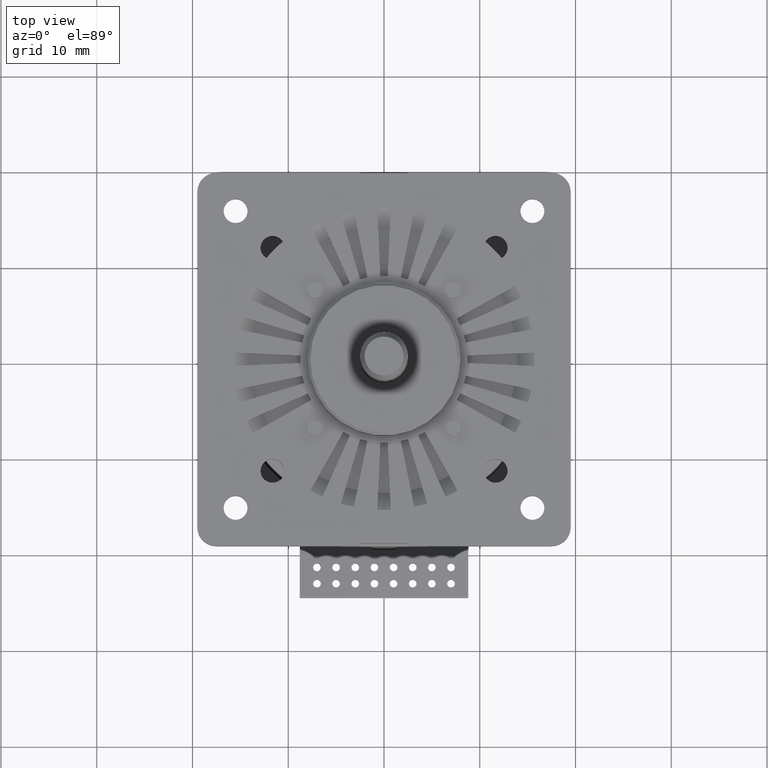
[diagram: clean part render]
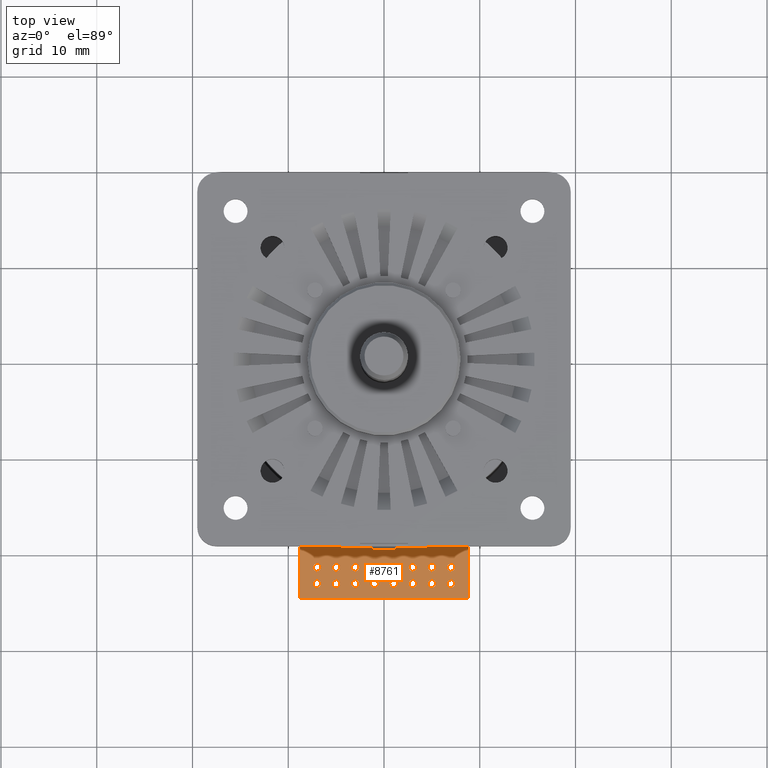
[diagram: same view with one face highlighted and labeled with its STEP entity id]
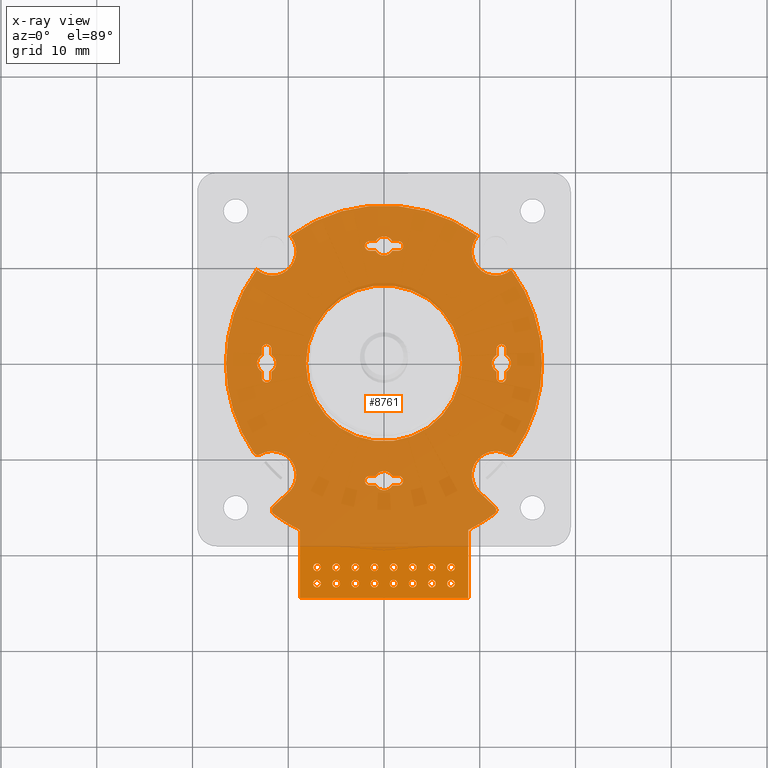
[diagram: x-ray of the same camera — body ghosted, the highlighted face saturated]
A machine part, top view. The second image highlights one B-rep face of the part: STEP entity #8761.
The next image is the same camera in x-ray: the body ghosted, the highlighted face saturated — about 89% of this face is hidden behind the body in this view.
In plain terms, the highlighted planar face has unit normal (0, 0, 1).
Its self-contained STEP definition (entity closure, byte-faithful):
#6999=CARTESIAN_POINT('',(0.E0,0.E0,0.E0));
#7000=DIRECTION('',(0.E0,0.E0,1.E0));
#7001=DIRECTION('',(-8.058198188562E-1,5.921608054732E-1,0.E0));
#7002=AXIS2_PLACEMENT_3D('',#6999,#7000,#7001);
#7004=CARTESIAN_POINT('',(-1.166726188958E1,1.166726188958E1,0.E0));
#7005=DIRECTION('',(0.E0,0.E0,-1.E0));
#7006=DIRECTION('',(1.E0,0.E0,0.E0));
#7007=AXIS2_PLACEMENT_3D('',#7004,#7005,#7006);
#7009=CARTESIAN_POINT('',(-1.166726188958E1,1.166726188958E1,0.E0));
#7010=DIRECTION('',(0.E0,0.E0,-1.E0));
#7011=DIRECTION('',(7.586434397082E-1,6.515060486194E-1,0.E0));
#7012=AXIS2_PLACEMENT_3D('',#7009,#7010,#7011);
#7014=CARTESIAN_POINT('',(0.E0,0.E0,0.E0));
#7015=DIRECTION('',(0.E0,0.E0,1.E0));
#7016=DIRECTION('',(5.921608054732E-1,8.058198188562E-1,0.E0));
#7017=AXIS2_PLACEMENT_3D('',#7014,#7015,#7016);
#7019=CARTESIAN_POINT('',(1.166726188958E1,1.166726188958E1,0.E0));
#7020=DIRECTION('',(0.E0,0.E0,-1.E0));
#7021=DIRECTION('',(-1.E0,0.E0,0.E0));
#7022=AXIS2_PLACEMENT_3D('',#7019,#7020,#7021);
#7024=CARTESIAN_POINT('',(1.166726188958E1,1.166726188958E1,0.E0));
#7025=DIRECTION('',(0.E0,0.E0,-1.E0));
#7026=DIRECTION('',(6.515060486194E-1,-7.586434397082E-1,0.E0));
#7027=AXIS2_PLACEMENT_3D('',#7024,#7025,#7026);
#7029=CARTESIAN_POINT('',(0.E0,0.E0,0.E0));
#7030=DIRECTION('',(0.E0,0.E0,1.E0));
#7031=DIRECTION('',(1.E0,0.E0,0.E0));
#7032=AXIS2_PLACEMENT_3D('',#7029,#7030,#7031);
#7034=CARTESIAN_POINT('',(0.E0,0.E0,0.E0));
#7035=DIRECTION('',(0.E0,0.E0,1.E0));
#7036=DIRECTION('',(8.235863458924E-1,-5.671909121800E-1,0.E0));
#7037=AXIS2_PLACEMENT_3D('',#7034,#7035,#7036);
#7039=CARTESIAN_POINT('',(1.317738153428E1,-9.075054594879E0,0.E0));
#7040=DIRECTION('',(0.E0,0.E0,1.E0));
#7041=DIRECTION('',(-5.033732149003E-1,-8.640690982328E-1,0.E0));
#7042=AXIS2_PLACEMENT_3D('',#7039,#7040,#7041);
#7044=CARTESIAN_POINT('',(1.166726188958E1,-1.166726188958E1,0.E0));
#7045=DIRECTION('',(0.E0,0.E0,-1.E0));
#7046=DIRECTION('',(-7.586434397082E-1,-6.515060486194E-1,0.E0));
#7047=AXIS2_PLACEMENT_3D('',#7044,#7045,#7046);
#7049=DIRECTION('',(-7.320903966057E-1,6.812074949659E-1,0.E0));
#7050=VECTOR('',#7049,2.449697499427E0);
#7051=CARTESIAN_POINT('',(1.156405330423E1,-1.496477930814E1,0.E0));
#7052=LINE('',#7051,#7050);
#7053=CARTESIAN_POINT('',(1.122344955674E1,-1.533082450644E1,0.E0));
#7054=DIRECTION('',(0.E0,0.E0,1.E0));
#7055=DIRECTION('',(1.E0,0.E0,0.E0));
#7056=AXIS2_PLACEMENT_3D('',#7053,#7054,#7055);
#7058=CARTESIAN_POINT('',(1.122344955674E1,-1.533082450644E1,0.E0));
#7059=DIRECTION('',(0.E0,0.E0,1.E0));
#7060=DIRECTION('',(5.907078714076E-1,-8.068855003389E-1,0.E0));
#7061=AXIS2_PLACEMENT_3D('',#7058,#7059,#7060);
#7063=CARTESIAN_POINT('',(0.E0,0.E0,0.E0));
#7064=DIRECTION('',(0.E0,0.E0,1.E0));
#7065=DIRECTION('',(4.512820512821E-1,-8.923813703740E-1,0.E0));
#7066=AXIS2_PLACEMENT_3D('',#7063,#7064,#7065);
#7068=DIRECTION('',(0.E0,-1.E0,0.E0));
#7069=VECTOR('',#7068,7.098563277706E0);
#7070=CARTESIAN_POINT('',(-8.8E0,-1.740143672229E1,0.E0));
#7071=LINE('',#7070,#7069);
#7072=CARTESIAN_POINT('',(0.E0,0.E0,0.E0));
#7073=DIRECTION('',(0.E0,0.E0,1.E0));
#7074=DIRECTION('',(-5.907078714076E-1,-8.068855003389E-1,0.E0));
#7075=AXIS2_PLACEMENT_3D('',#7072,#7073,#7074);
#7077=CARTESIAN_POINT('',(-1.122344955674E1,-1.533082450644E1,0.E0));
#7078=DIRECTION('',(0.E0,0.E0,1.E0));
#7079=DIRECTION('',(-1.E0,0.E0,0.E0));
#7080=AXIS2_PLACEMENT_3D('',#7077,#7078,#7079);
#7082=CARTESIAN_POINT('',(-1.122344955674E1,-1.533082450644E1,0.E0));
#7083=DIRECTION('',(0.E0,0.E0,1.E0));
#7084=DIRECTION('',(-6.812074949658E-1,7.320903966058E-1,0.E0));
#7085=AXIS2_PLACEMENT_3D('',#7082,#7083,#7084);
#7087=DIRECTION('',(-7.320903966057E-1,-6.812074949659E-1,0.E0));
#7088=VECTOR('',#7087,2.449697499427E0);
#7089=CARTESIAN_POINT('',(-9.770653290307E0,-1.329602701113E1,0.E0));
#7090=LINE('',#7089,#7088);
#7091=CARTESIAN_POINT('',(-1.166726188958E1,-1.166726188958E1,0.E0));
#7092=DIRECTION('',(0.E0,0.E0,-1.E0));
#7093=DIRECTION('',(1.E0,0.E0,0.E0));
#7094=AXIS2_PLACEMENT_3D('',#7091,#7092,#7093);
#7096=CARTESIAN_POINT('',(-1.166726188958E1,-1.166726188958E1,0.E0));
#7097=DIRECTION('',(0.E0,0.E0,-1.E0));
#7098=DIRECTION('',(-5.033732149003E-1,8.640690982329E-1,0.E0));
#7099=AXIS2_PLACEMENT_3D('',#7096,#7097,#7098);
#7101=CARTESIAN_POINT('',(-1.317738153428E1,-9.075054594879E0,0.E0));
#7102=DIRECTION('',(0.E0,0.E0,1.E0));
#7103=DIRECTION('',(-8.235863458924E-1,-5.671909121800E-1,0.E0));
#7104=AXIS2_PLACEMENT_3D('',#7101,#7102,#7103);
#7106=CARTESIAN_POINT('',(0.E0,0.E0,0.E0));
#7107=DIRECTION('',(0.E0,0.E0,1.E0));
#7108=DIRECTION('',(-1.E0,0.E0,0.E0));
#7109=AXIS2_PLACEMENT_3D('',#7106,#7107,#7108);
#7111=CARTESIAN_POINT('',(7.E0,-2.13E1,0.E0));
#7112=DIRECTION('',(0.E0,0.E0,-1.E0));
#7113=DIRECTION('',(-1.E0,0.E0,0.E0));
#7114=AXIS2_PLACEMENT_3D('',#7111,#7112,#7113);
#7116=CARTESIAN_POINT('',(7.E0,-2.13E1,0.E0));
#7117=DIRECTION('',(0.E0,0.E0,-1.E0));
#7118=DIRECTION('',(1.E0,0.E0,0.E0));
#7119=AXIS2_PLACEMENT_3D('',#7116,#7117,#7118);
#7121=CARTESIAN_POINT('',(5.E0,-2.13E1,0.E0));
#7122=DIRECTION('',(0.E0,0.E0,-1.E0));
#7123=DIRECTION('',(-1.E0,0.E0,0.E0));
#7124=AXIS2_PLACEMENT_3D('',#7121,#7122,#7123);
#7126=CARTESIAN_POINT('',(5.E0,-2.13E1,0.E0));
#7127=DIRECTION('',(0.E0,0.E0,-1.E0));
#7128=DIRECTION('',(1.E0,0.E0,0.E0));
#7129=AXIS2_PLACEMENT_3D('',#7126,#7127,#7128);
#7131=CARTESIAN_POINT('',(3.E0,-2.13E1,0.E0));
#7132=DIRECTION('',(0.E0,0.E0,-1.E0));
#7133=DIRECTION('',(-1.E0,0.E0,0.E0));
#7134=AXIS2_PLACEMENT_3D('',#7131,#7132,#7133);
#7136=CARTESIAN_POINT('',(3.E0,-2.13E1,0.E0));
#7137=DIRECTION('',(0.E0,0.E0,-1.E0));
#7138=DIRECTION('',(1.E0,0.E0,0.E0));
#7139=AXIS2_PLACEMENT_3D('',#7136,#7137,#7138);
#7141=CARTESIAN_POINT('',(-7.E0,-2.13E1,0.E0));
#7142=DIRECTION('',(0.E0,0.E0,-1.E0));
#7143=DIRECTION('',(-1.E0,0.E0,0.E0));
#7144=AXIS2_PLACEMENT_3D('',#7141,#7142,#7143);
#7146=CARTESIAN_POINT('',(-7.E0,-2.13E1,0.E0));
#7147=DIRECTION('',(0.E0,0.E0,-1.E0));
#7148=DIRECTION('',(1.E0,0.E0,0.E0));
#7149=AXIS2_PLACEMENT_3D('',#7146,#7147,#7148);
#7151=CARTESIAN_POINT('',(-5.E0,-2.13E1,0.E0));
#7152=DIRECTION('',(0.E0,0.E0,-1.E0));
#7153=DIRECTION('',(-1.E0,0.E0,0.E0));
#7154=AXIS2_PLACEMENT_3D('',#7151,#7152,#7153);
#7156=CARTESIAN_POINT('',(-5.E0,-2.13E1,0.E0));
#7157=DIRECTION('',(0.E0,0.E0,-1.E0));
#7158=DIRECTION('',(1.E0,0.E0,0.E0));
#7159=AXIS2_PLACEMENT_3D('',#7156,#7157,#7158);
#7161=CARTESIAN_POINT('',(-3.E0,-2.13E1,0.E0));
#7162=DIRECTION('',(0.E0,0.E0,-1.E0));
#7163=DIRECTION('',(-1.E0,0.E0,0.E0));
#7164=AXIS2_PLACEMENT_3D('',#7161,#7162,#7163);
#7166=CARTESIAN_POINT('',(-3.E0,-2.13E1,0.E0));
#7167=DIRECTION('',(0.E0,0.E0,-1.E0));
#7168=DIRECTION('',(1.E0,0.E0,0.E0));
#7169=AXIS2_PLACEMENT_3D('',#7166,#7167,#7168);
#7171=CARTESIAN_POINT('',(-1.E0,-2.13E1,0.E0));
#7172=DIRECTION('',(0.E0,0.E0,-1.E0));
#7173=DIRECTION('',(-1.E0,0.E0,0.E0));
#7174=AXIS2_PLACEMENT_3D('',#7171,#7172,#7173);
#7176=CARTESIAN_POINT('',(-1.E0,-2.13E1,0.E0));
#7177=DIRECTION('',(0.E0,0.E0,-1.E0));
#7178=DIRECTION('',(1.E0,0.E0,0.E0));
#7179=AXIS2_PLACEMENT_3D('',#7176,#7177,#7178);
#7181=CARTESIAN_POINT('',(1.E0,-2.13E1,0.E0));
#7182=DIRECTION('',(0.E0,0.E0,-1.E0));
#7183=DIRECTION('',(-1.E0,0.E0,0.E0));
#7184=AXIS2_PLACEMENT_3D('',#7181,#7182,#7183);
#7186=CARTESIAN_POINT('',(1.E0,-2.13E1,0.E0));
#7187=DIRECTION('',(0.E0,0.E0,-1.E0));
#7188=DIRECTION('',(1.E0,0.E0,0.E0));
#7189=AXIS2_PLACEMENT_3D('',#7186,#7187,#7188);
#7191=CARTESIAN_POINT('',(7.E0,-2.3E1,0.E0));
#7192=DIRECTION('',(0.E0,0.E0,-1.E0));
#7193=DIRECTION('',(-1.E0,0.E0,0.E0));
#7194=AXIS2_PLACEMENT_3D('',#7191,#7192,#7193);
#7196=CARTESIAN_POINT('',(7.E0,-2.3E1,0.E0));
#7197=DIRECTION('',(0.E0,0.E0,-1.E0));
#7198=DIRECTION('',(1.E0,0.E0,0.E0));
#7199=AXIS2_PLACEMENT_3D('',#7196,#7197,#7198);
#7201=CARTESIAN_POINT('',(5.E0,-2.3E1,0.E0));
#7202=DIRECTION('',(0.E0,0.E0,-1.E0));
#7203=DIRECTION('',(-1.E0,0.E0,0.E0));
#7204=AXIS2_PLACEMENT_3D('',#7201,#7202,#7203);
#7206=CARTESIAN_POINT('',(5.E0,-2.3E1,0.E0));
#7207=DIRECTION('',(0.E0,0.E0,-1.E0));
#7208=DIRECTION('',(1.E0,0.E0,0.E0));
#7209=AXIS2_PLACEMENT_3D('',#7206,#7207,#7208);
#7211=CARTESIAN_POINT('',(3.E0,-2.3E1,0.E0));
#7212=DIRECTION('',(0.E0,0.E0,-1.E0));
#7213=DIRECTION('',(-1.E0,0.E0,0.E0));
#7214=AXIS2_PLACEMENT_3D('',#7211,#7212,#7213);
#7216=CARTESIAN_POINT('',(3.E0,-2.3E1,0.E0));
#7217=DIRECTION('',(0.E0,0.E0,-1.E0));
#7218=DIRECTION('',(1.E0,0.E0,0.E0));
#7219=AXIS2_PLACEMENT_3D('',#7216,#7217,#7218);
#7221=CARTESIAN_POINT('',(-7.E0,-2.3E1,0.E0));
#7222=DIRECTION('',(0.E0,0.E0,-1.E0));
#7223=DIRECTION('',(-1.E0,0.E0,0.E0));
#7224=AXIS2_PLACEMENT_3D('',#7221,#7222,#7223);
#7226=CARTESIAN_POINT('',(-7.E0,-2.3E1,0.E0));
#7227=DIRECTION('',(0.E0,0.E0,-1.E0));
#7228=DIRECTION('',(1.E0,0.E0,0.E0));
#7229=AXIS2_PLACEMENT_3D('',#7226,#7227,#7228);
#7231=CARTESIAN_POINT('',(-5.E0,-2.3E1,0.E0));
#7232=DIRECTION('',(0.E0,0.E0,-1.E0));
#7233=DIRECTION('',(-1.E0,0.E0,0.E0));
#7234=AXIS2_PLACEMENT_3D('',#7231,#7232,#7233);
#7236=CARTESIAN_POINT('',(-5.E0,-2.3E1,0.E0));
#7237=DIRECTION('',(0.E0,0.E0,-1.E0));
#7238=DIRECTION('',(1.E0,0.E0,0.E0));
#7239=AXIS2_PLACEMENT_3D('',#7236,#7237,#7238);
#7241=CARTESIAN_POINT('',(-3.E0,-2.3E1,0.E0));
#7242=DIRECTION('',(0.E0,0.E0,-1.E0));
#7243=DIRECTION('',(-1.E0,0.E0,0.E0));
#7244=AXIS2_PLACEMENT_3D('',#7241,#7242,#7243);
#7246=CARTESIAN_POINT('',(-3.E0,-2.3E1,0.E0));
#7247=DIRECTION('',(0.E0,0.E0,-1.E0));
#7248=DIRECTION('',(1.E0,0.E0,0.E0));
#7249=AXIS2_PLACEMENT_3D('',#7246,#7247,#7248);
#7251=CARTESIAN_POINT('',(-1.E0,-2.3E1,0.E0));
#7252=DIRECTION('',(0.E0,0.E0,-1.E0));
#7253=DIRECTION('',(-1.E0,0.E0,0.E0));
#7254=AXIS2_PLACEMENT_3D('',#7251,#7252,#7253);
#7256=CARTESIAN_POINT('',(-1.E0,-2.3E1,0.E0));
#7257=DIRECTION('',(0.E0,0.E0,-1.E0));
#7258=DIRECTION('',(1.E0,0.E0,0.E0));
#7259=AXIS2_PLACEMENT_3D('',#7256,#7257,#7258);
#7261=CARTESIAN_POINT('',(1.E0,-2.3E1,0.E0));
#7262=DIRECTION('',(0.E0,0.E0,-1.E0));
#7263=DIRECTION('',(-1.E0,0.E0,0.E0));
#7264=AXIS2_PLACEMENT_3D('',#7261,#7262,#7263);
#7266=CARTESIAN_POINT('',(1.E0,-2.3E1,0.E0));
#7267=DIRECTION('',(0.E0,0.E0,-1.E0));
#7268=DIRECTION('',(1.E0,0.E0,0.E0));
#7269=AXIS2_PLACEMENT_3D('',#7266,#7267,#7268);
#7271=CARTESIAN_POINT('',(1.226E1,-1.5E0,0.E0));
#7272=DIRECTION('',(0.E0,0.E0,-1.E0));
#7273=DIRECTION('',(1.E0,2.220446049250E-14,0.E0));
#7274=AXIS2_PLACEMENT_3D('',#7271,#7272,#7273);
#7276=DIRECTION('',(0.E0,-1.E0,0.E0));
#7277=VECTOR('',#7276,6.339745962156E-1);
#7278=CARTESIAN_POINT('',(1.276E1,-8.660254037844E-1,0.E0));
#7279=LINE('',#7278,#7277);
#7280=CARTESIAN_POINT('',(1.226E1,0.E0,0.E0));
#7281=DIRECTION('',(0.E0,0.E0,-1.E0));
#7282=DIRECTION('',(1.E0,0.E0,0.E0));
#7283=AXIS2_PLACEMENT_3D('',#7280,#7281,#7282);
#7285=CARTESIAN_POINT('',(1.226E1,0.E0,0.E0));
#7286=DIRECTION('',(0.E0,0.E0,-1.E0));
#7287=DIRECTION('',(5.E-1,8.660254037844E-1,0.E0));
#7288=AXIS2_PLACEMENT_3D('',#7285,#7286,#7287);
#7290=CARTESIAN_POINT('',(1.226E1,1.5E0,0.E0));
#7291=DIRECTION('',(0.E0,0.E0,-1.E0));
#7292=DIRECTION('',(-1.E0,2.220446049250E-14,0.E0));
#7293=AXIS2_PLACEMENT_3D('',#7290,#7291,#7292);
#7295=DIRECTION('',(0.E0,1.E0,0.E0));
#7296=VECTOR('',#7295,6.339745962156E-1);
#7297=CARTESIAN_POINT('',(1.176E1,8.660254037844E-1,0.E0));
#7298=LINE('',#7297,#7296);
#7299=CARTESIAN_POINT('',(1.226E1,0.E0,0.E0));
#7300=DIRECTION('',(0.E0,0.E0,-1.E0));
#7301=DIRECTION('',(-5.E-1,-8.660254037844E-1,0.E0));
#7302=AXIS2_PLACEMENT_3D('',#7299,#7300,#7301);
#7304=CARTESIAN_POINT('',(1.5E0,1.226E1,0.E0));
#7305=DIRECTION('',(0.E0,0.E0,-1.E0));
#7306=DIRECTION('',(1.E0,0.E0,0.E0));
#7307=AXIS2_PLACEMENT_3D('',#7304,#7305,#7306);
#7309=CARTESIAN_POINT('',(1.5E0,1.226E1,0.E0));
#7310=DIRECTION('',(0.E0,0.E0,-1.E0));
#7311=DIRECTION('',(0.E0,1.E0,0.E0));
#7312=AXIS2_PLACEMENT_3D('',#7309,#7310,#7311);
#7314=DIRECTION('',(1.E0,0.E0,0.E0));
#7315=VECTOR('',#7314,6.339745962156E-1);
#7316=CARTESIAN_POINT('',(8.660254037844E-1,1.276E1,0.E0));
#7317=LINE('',#7316,#7315);
#7318=CARTESIAN_POINT('',(0.E0,1.226E1,0.E0));
#7319=DIRECTION('',(0.E0,0.E0,-1.E0));
#7320=DIRECTION('',(-8.660254037844E-1,5.E-1,0.E0));
#7321=AXIS2_PLACEMENT_3D('',#7318,#7319,#7320);
#7323=CARTESIAN_POINT('',(-1.5E0,1.226E1,0.E0));
#7324=DIRECTION('',(0.E0,0.E0,-1.E0));
#7325=DIRECTION('',(0.E0,-1.E0,0.E0));
#7326=AXIS2_PLACEMENT_3D('',#7323,#7324,#7325);
#7328=DIRECTION('',(-1.E0,0.E0,0.E0));
#7329=VECTOR('',#7328,6.339745962156E-1);
#7330=CARTESIAN_POINT('',(-8.660254037844E-1,1.176E1,0.E0));
#7331=LINE('',#7330,#7329);
#7332=CARTESIAN_POINT('',(0.E0,1.226E1,0.E0));
#7333=DIRECTION('',(0.E0,0.E0,-1.E0));
#7334=DIRECTION('',(8.660254037844E-1,-5.E-1,0.E0));
#7335=AXIS2_PLACEMENT_3D('',#7332,#7333,#7334);
#7337=CARTESIAN_POINT('',(0.E0,0.E0,0.E0));
#7338=DIRECTION('',(0.E0,0.E0,-1.E0));
#7339=DIRECTION('',(-1.E0,0.E0,0.E0));
#7340=AXIS2_PLACEMENT_3D('',#7337,#7338,#7339);
#7342=CARTESIAN_POINT('',(0.E0,0.E0,0.E0));
#7343=DIRECTION('',(0.E0,0.E0,-1.E0));
#7344=DIRECTION('',(1.E0,0.E0,0.E0));
#7345=AXIS2_PLACEMENT_3D('',#7342,#7343,#7344);
#7347=CARTESIAN_POINT('',(-1.5E0,-1.226E1,0.E0));
#7348=DIRECTION('',(0.E0,0.E0,-1.E0));
#7349=DIRECTION('',(2.886579864025E-14,-1.E0,0.E0));
#7350=AXIS2_PLACEMENT_3D('',#7347,#7348,#7349);
#7352=DIRECTION('',(-1.E0,0.E0,0.E0));
#7353=VECTOR('',#7352,6.339745962156E-1);
#7354=CARTESIAN_POINT('',(-8.660254037844E-1,-1.276E1,0.E0));
#7355=LINE('',#7354,#7353);
#7356=CARTESIAN_POINT('',(0.E0,-1.226E1,0.E0));
#7357=DIRECTION('',(0.E0,0.E0,-1.E0));
#7358=DIRECTION('',(8.660254037844E-1,-5.E-1,0.E0));
#7359=AXIS2_PLACEMENT_3D('',#7356,#7357,#7358);
#7361=CARTESIAN_POINT('',(1.5E0,-1.226E1,0.E0));
#7362=DIRECTION('',(0.E0,0.E0,-1.E0));
#7363=DIRECTION('',(1.E0,0.E0,0.E0));
#7364=AXIS2_PLACEMENT_3D('',#7361,#7362,#7363);
#7366=CARTESIAN_POINT('',(1.5E0,-1.226E1,0.E0));
#7367=DIRECTION('',(0.E0,0.E0,-1.E0));
#7368=DIRECTION('',(9.192646643896E-14,1.E0,0.E0));
#7369=AXIS2_PLACEMENT_3D('',#7366,#7367,#7368);
#7371=DIRECTION('',(1.E0,1.120774775522E-14,0.E0));
#7372=VECTOR('',#7371,6.339745962156E-1);
#7373=CARTESIAN_POINT('',(8.660254037844E-1,-1.176E1,0.E0));
#7374=LINE('',#7373,#7372);
#7375=CARTESIAN_POINT('',(0.E0,-1.226E1,0.E0));
#7376=DIRECTION('',(0.E0,0.E0,-1.E0));
#7377=DIRECTION('',(-8.660254037844E-1,5.E-1,0.E0));
#7378=AXIS2_PLACEMENT_3D('',#7375,#7376,#7377);
#7380=CARTESIAN_POINT('',(-1.5E0,-1.226E1,0.E0));
#7381=DIRECTION('',(0.E0,0.E0,-1.E0));
#7382=DIRECTION('',(-1.E0,0.E0,0.E0));
#7383=AXIS2_PLACEMENT_3D('',#7380,#7381,#7382);
#7385=CARTESIAN_POINT('',(-1.226E1,1.5E0,0.E0));
#7386=DIRECTION('',(0.E0,0.E0,-1.E0));
#7387=DIRECTION('',(-1.E0,4.707345624411E-14,0.E0));
#7388=AXIS2_PLACEMENT_3D('',#7385,#7386,#7387);
#7390=DIRECTION('',(0.E0,1.E0,0.E0));
#7391=VECTOR('',#7390,6.339745962156E-1);
#7392=CARTESIAN_POINT('',(-1.276E1,8.660254037844E-1,0.E0));
#7393=LINE('',#7392,#7391);
#7394=CARTESIAN_POINT('',(-1.226E1,0.E0,0.E0));
#7395=DIRECTION('',(0.E0,0.E0,-1.E0));
#7396=DIRECTION('',(-5.E-1,-8.660254037844E-1,0.E0));
#7397=AXIS2_PLACEMENT_3D('',#7394,#7395,#7396);
#7399=CARTESIAN_POINT('',(-1.226E1,-1.5E0,0.E0));
#7400=DIRECTION('',(0.E0,0.E0,-1.E0));
#7401=DIRECTION('',(1.E0,-4.396483177516E-14,0.E0));
#7402=AXIS2_PLACEMENT_3D('',#7399,#7400,#7401);
#7404=DIRECTION('',(0.E0,-1.E0,0.E0));
#7405=VECTOR('',#7404,6.339745962156E-1);
#7406=CARTESIAN_POINT('',(-1.176E1,-8.660254037844E-1,0.E0));
#7407=LINE('',#7406,#7405);
#7408=CARTESIAN_POINT('',(-1.226E1,0.E0,0.E0));
#7409=DIRECTION('',(0.E0,0.E0,-1.E0));
#7410=DIRECTION('',(1.E0,0.E0,0.E0));
#7411=AXIS2_PLACEMENT_3D('',#7408,#7409,#7410);
#7413=CARTESIAN_POINT('',(-1.226E1,0.E0,0.E0));
#7414=DIRECTION('',(0.E0,0.E0,-1.E0));
#7415=DIRECTION('',(5.E-1,8.660254037844E-1,0.E0));
#7416=AXIS2_PLACEMENT_3D('',#7413,#7414,#7415);
#7474=DIRECTION('',(0.E0,-1.E0,0.E0));
#7475=VECTOR('',#7474,7.098563277706E0);
#7476=CARTESIAN_POINT('',(8.8E0,-1.740143672229E1,0.E0));
#7477=LINE('',#7476,#7475);
#7482=DIRECTION('',(-1.E0,0.E0,0.E0));
#7483=VECTOR('',#7482,1.76E1);
#7484=CARTESIAN_POINT('',(8.8E0,-2.45E1,0.E0));
#7485=LINE('',#7484,#7483);
#7638=DIRECTION('',(0.E0,-1.E0,0.E0));
#7639=VECTOR('',#7638,6.339745962156E-1);
#7640=CARTESIAN_POINT('',(1.176E1,-8.660254037844E-1,0.E0));
#7641=LINE('',#7640,#7639);
#7666=DIRECTION('',(0.E0,1.E0,0.E0));
#7667=VECTOR('',#7666,6.339745962156E-1);
#7668=CARTESIAN_POINT('',(1.276E1,8.660254037844E-1,0.E0));
#7669=LINE('',#7668,#7667);
#7714=DIRECTION('',(-1.E0,0.E0,0.E0));
#7715=VECTOR('',#7714,6.339745962156E-1);
#7716=CARTESIAN_POINT('',(-8.660254037844E-1,1.276E1,0.E0));
#7717=LINE('',#7716,#7715);
#7738=DIRECTION('',(1.E0,0.E0,0.E0));
#7739=VECTOR('',#7738,6.339745962156E-1);
#7740=CARTESIAN_POINT('',(8.660254037844E-1,1.176E1,0.E0));
#7741=LINE('',#7740,#7739);
#7758=DIRECTION('',(-1.E0,0.E0,0.E0));
#7759=VECTOR('',#7758,6.339745962156E-1);
#7760=CARTESIAN_POINT('',(-8.660254037844E-1,-1.176E1,0.E0));
#7761=LINE('',#7760,#7759);
#7786=DIRECTION('',(1.E0,0.E0,0.E0));
#7787=VECTOR('',#7786,6.339745962156E-1);
#7788=CARTESIAN_POINT('',(8.660254037844E-1,-1.276E1,0.E0));
#7789=LINE('',#7788,#7787);
#7802=DIRECTION('',(1.120774775522E-14,1.E0,0.E0));
#7803=VECTOR('',#7802,6.339745962156E-1);
#7804=CARTESIAN_POINT('',(-1.176E1,8.660254037844E-1,0.E0));
#7805=LINE('',#7804,#7803);
#7826=DIRECTION('',(0.E0,-1.E0,0.E0));
#7827=VECTOR('',#7826,6.339745962156E-1);
#7828=CARTESIAN_POINT('',(-1.276E1,-8.660254037844E-1,0.E0));
#7829=LINE('',#7828,#7827);
#7854=CARTESIAN_POINT('',(2.E0,-1.226E1,0.E0));
#7855=CARTESIAN_POINT('',(1.5E0,-1.276E1,0.E0));
#7856=VERTEX_POINT('',#7854);
#7857=VERTEX_POINT('',#7855);
#7858=CARTESIAN_POINT('',(-8.660254037844E-1,-1.276E1,0.E0));
#7859=CARTESIAN_POINT('',(-1.5E0,-1.276E1,0.E0));
#7860=VERTEX_POINT('',#7858);
#7861=VERTEX_POINT('',#7859);
#7862=CARTESIAN_POINT('',(8.660254037844E-1,-1.276E1,0.E0));
#7863=VERTEX_POINT('',#7862);
#7864=CARTESIAN_POINT('',(-1.176E1,8.660254037844E-1,0.E0));
#7865=CARTESIAN_POINT('',(-1.176E1,1.5E0,0.E0));
#7866=VERTEX_POINT('',#7864);
#7867=VERTEX_POINT('',#7865);
#7868=CARTESIAN_POINT('',(-1.276E1,-8.660254037844E-1,0.E0));
#7869=CARTESIAN_POINT('',(-1.276E1,-1.5E0,0.E0));
#7870=VERTEX_POINT('',#7868);
#7871=VERTEX_POINT('',#7869);
#7872=CARTESIAN_POINT('',(-1.126E1,0.E0,0.E0));
#7873=CARTESIAN_POINT('',(-1.176E1,-8.660254037844E-1,0.E0));
#7874=VERTEX_POINT('',#7872);
#7875=VERTEX_POINT('',#7873);
#7876=CARTESIAN_POINT('',(-1.176E1,-1.5E0,0.E0));
#7877=VERTEX_POINT('',#7876);
#7878=CARTESIAN_POINT('',(1.5E0,1.276E1,0.E0));
#7880=VERTEX_POINT('',#7878);
#7888=CARTESIAN_POINT('',(6.E-1,-2.3E1,0.E0));
#7889=VERTEX_POINT('',#7888);
#7898=CARTESIAN_POINT('',(6.6E0,-2.3E1,0.E0));
#7900=VERTEX_POINT('',#7898);
#7910=CARTESIAN_POINT('',(3.4E0,-2.3E1,0.E0));
#7912=VERTEX_POINT('',#7910);
#7914=CARTESIAN_POINT('',(-2.6E0,-2.3E1,0.E0));
#7915=CARTESIAN_POINT('',(-3.4E0,-2.3E1,0.E0));
#7916=VERTEX_POINT('',#7914);
#7917=VERTEX_POINT('',#7915);
#7922=CARTESIAN_POINT('',(7.4E0,-2.13E1,0.E0));
#7923=CARTESIAN_POINT('',(6.6E0,-2.13E1,0.E0));
#7924=VERTEX_POINT('',#7922);
#7925=VERTEX_POINT('',#7923);
#7926=CARTESIAN_POINT('',(3.4E0,-2.13E1,0.E0));
#7927=CARTESIAN_POINT('',(2.6E0,-2.13E1,0.E0));
#7928=VERTEX_POINT('',#7926);
#7929=VERTEX_POINT('',#7927);
#7934=CARTESIAN_POINT('',(-6.6E0,-2.13E1,0.E0));
#7935=CARTESIAN_POINT('',(-7.4E0,-2.13E1,0.E0));
#7936=VERTEX_POINT('',#7934);
#7937=VERTEX_POINT('',#7935);
#7938=CARTESIAN_POINT('',(4.6E0,-2.13E1,0.E0));
#7940=VERTEX_POINT('',#7938);
#7942=CARTESIAN_POINT('',(-7.4E0,-2.3E1,0.E0));
#7944=VERTEX_POINT('',#7942);
#7946=CARTESIAN_POINT('',(1.151880349245E1,-1.573426725661E1,0.E0));
#7947=CARTESIAN_POINT('',(1.172344955674E1,-1.533082450644E1,0.E0));
#7948=VERTEX_POINT('',#7946);
#7949=VERTEX_POINT('',#7947);
#7960=CARTESIAN_POINT('',(7.4E0,-2.3E1,0.E0));
#7961=VERTEX_POINT('',#7960);
#7962=CARTESIAN_POINT('',(-6.6E0,-2.3E1,0.E0));
#7963=VERTEX_POINT('',#7962);
#7964=CARTESIAN_POINT('',(-1.4E0,-2.3E1,0.E0));
#7966=VERTEX_POINT('',#7964);
#7972=CARTESIAN_POINT('',(-6.E-1,-2.13E1,0.E0));
#7973=CARTESIAN_POINT('',(-1.4E0,-2.13E1,0.E0));
#7974=VERTEX_POINT('',#7972);
#7975=VERTEX_POINT('',#7973);
#7980=CARTESIAN_POINT('',(-5.4E0,-2.13E1,0.E0));
#7981=VERTEX_POINT('',#7980);
#7988=CARTESIAN_POINT('',(-6.E-1,-2.3E1,0.E0));
#7989=VERTEX_POINT('',#7988);
#8014=CARTESIAN_POINT('',(-9.770653290307E0,1.329602701113E1,0.E0));
#8015=CARTESIAN_POINT('',(-9.167261889578E0,1.166726188958E1,0.E0));
#8016=VERTEX_POINT('',#8014);
#8017=VERTEX_POINT('',#8015);
#8018=CARTESIAN_POINT('',(2.E0,1.226E1,0.E0));
#8020=VERTEX_POINT('',#8018);
#8022=CARTESIAN_POINT('',(-1.292569492683E1,-9.507089143996E0,0.E0));
#8023=VERTEX_POINT('',#8022);
#8024=CARTESIAN_POINT('',(-9.167261889578E0,-1.166726188958E1,0.E0));
#8025=VERTEX_POINT('',#8024);
#8026=CARTESIAN_POINT('',(8.15E0,0.E0,0.E0));
#8027=CARTESIAN_POINT('',(-8.15E0,0.E0,0.E0));
#8028=VERTEX_POINT('',#8026);
#8029=VERTEX_POINT('',#8027);
#8032=CARTESIAN_POINT('',(1.5E0,-1.176E1,0.E0));
#8033=VERTEX_POINT('',#8032);
#8048=CARTESIAN_POINT('',(1.65E1,0.E0,0.E0));
#8049=VERTEX_POINT('',#8048);
#8060=CARTESIAN_POINT('',(1.358917470723E1,-9.358650050969E0,0.E0));
#8061=VERTEX_POINT('',#8060);
#8062=CARTESIAN_POINT('',(5.4E0,-2.13E1,0.E0));
#8063=VERTEX_POINT('',#8062);
#8072=CARTESIAN_POINT('',(-4.6E0,-2.13E1,0.E0));
#8073=VERTEX_POINT('',#8072);
#8074=CARTESIAN_POINT('',(1.276E1,8.660254037844E-1,0.E0));
#8076=VERTEX_POINT('',#8074);
#8086=CARTESIAN_POINT('',(1.326E1,0.E0,0.E0));
#8087=VERTEX_POINT('',#8086);
#8116=CARTESIAN_POINT('',(1.4E0,-2.3E1,0.E0));
#8117=VERTEX_POINT('',#8116);
#8120=CARTESIAN_POINT('',(-4.6E0,-2.3E1,0.E0));
#8121=VERTEX_POINT('',#8120);
#8122=CARTESIAN_POINT('',(-2.6E0,-2.13E1,0.E0));
#8123=CARTESIAN_POINT('',(-3.4E0,-2.13E1,0.E0));
#8124=VERTEX_POINT('',#8122);
#8125=VERTEX_POINT('',#8123);
#8138=CARTESIAN_POINT('',(-5.4E0,-2.3E1,0.E0));
#8139=VERTEX_POINT('',#8138);
#8140=CARTESIAN_POINT('',(5.4E0,-2.3E1,0.E0));
#8141=CARTESIAN_POINT('',(4.6E0,-2.3E1,0.E0));
#8142=VERTEX_POINT('',#8140);
#8143=VERTEX_POINT('',#8141);
#8148=CARTESIAN_POINT('',(1.4E0,-2.13E1,0.E0));
#8149=CARTESIAN_POINT('',(6.E-1,-2.13E1,0.E0));
#8150=VERTEX_POINT('',#8148);
#8151=VERTEX_POINT('',#8149);
#8152=CARTESIAN_POINT('',(2.6E0,-2.3E1,0.E0));
#8153=VERTEX_POINT('',#8152);
#8160=CARTESIAN_POINT('',(-9.770653290307E0,-1.329602701113E1,0.E0));
#8161=VERTEX_POINT('',#8160);
#8162=CARTESIAN_POINT('',(-1.358917470723E1,-9.358650050969E0,0.E0));
#8163=VERTEX_POINT('',#8162);
#8164=CARTESIAN_POINT('',(-1.329602701113E1,9.770653290307E0,0.E0));
#8165=CARTESIAN_POINT('',(-1.65E1,0.E0,0.E0));
#8166=VERTEX_POINT('',#8164);
#8167=VERTEX_POINT('',#8165);
#8168=CARTESIAN_POINT('',(-1.156405330423E1,-1.496477930814E1,0.E0));
#8169=CARTESIAN_POINT('',(-1.172344955674E1,-1.533082450644E1,0.E0));
#8170=VERTEX_POINT('',#8168);
#8171=VERTEX_POINT('',#8169);
#8172=CARTESIAN_POINT('',(-1.151880349245E1,-1.573426725661E1,0.E0));
#8173=VERTEX_POINT('',#8172);
#8174=CARTESIAN_POINT('',(-8.8E0,-1.740143672229E1,0.E0));
#8175=VERTEX_POINT('',#8174);
#8176=CARTESIAN_POINT('',(8.8E0,-2.45E1,0.E0));
#8177=CARTESIAN_POINT('',(-8.8E0,-2.45E1,0.E0));
#8178=VERTEX_POINT('',#8176);
#8179=VERTEX_POINT('',#8177);
#8180=CARTESIAN_POINT('',(8.660254037844E-1,1.276E1,0.E0));
#8181=VERTEX_POINT('',#8180);
#8182=CARTESIAN_POINT('',(8.8E0,-1.740143672229E1,0.E0));
#8183=VERTEX_POINT('',#8182);
#8184=CARTESIAN_POINT('',(-1.5E0,1.176E1,0.E0));
#8185=VERTEX_POINT('',#8184);
#8186=CARTESIAN_POINT('',(-8.660254037844E-1,1.276E1,0.E0));
#8187=CARTESIAN_POINT('',(-1.5E0,1.276E1,0.E0));
#8188=VERTEX_POINT('',#8186);
#8189=VERTEX_POINT('',#8187);
#8190=CARTESIAN_POINT('',(1.276E1,-8.660254037844E-1,0.E0));
#8191=VERTEX_POINT('',#8190);
#8192=CARTESIAN_POINT('',(8.660254037844E-1,1.176E1,0.E0));
#8193=CARTESIAN_POINT('',(-8.660254037844E-1,1.176E1,0.E0));
#8194=VERTEX_POINT('',#8192);
#8195=VERTEX_POINT('',#8193);
#8196=CARTESIAN_POINT('',(1.176E1,1.5E0,0.E0));
#8197=CARTESIAN_POINT('',(1.276E1,1.5E0,0.E0));
#8198=VERTEX_POINT('',#8196);
#8199=VERTEX_POINT('',#8197);
#8200=CARTESIAN_POINT('',(1.5E0,1.176E1,0.E0));
#8201=VERTEX_POINT('',#8200);
#8202=CARTESIAN_POINT('',(1.276E1,-1.5E0,0.E0));
#8203=VERTEX_POINT('',#8202);
#8204=CARTESIAN_POINT('',(1.176E1,8.660254037844E-1,0.E0));
#8205=VERTEX_POINT('',#8204);
#8206=CARTESIAN_POINT('',(1.176E1,-8.660254037844E-1,0.E0));
#8207=CARTESIAN_POINT('',(1.176E1,-1.5E0,0.E0));
#8208=VERTEX_POINT('',#8206);
#8209=VERTEX_POINT('',#8207);
#8210=CARTESIAN_POINT('',(-1.5E0,-1.176E1,0.E0));
#8211=VERTEX_POINT('',#8210);
#8212=CARTESIAN_POINT('',(8.660254037844E-1,-1.176E1,0.E0));
#8213=VERTEX_POINT('',#8212);
#8214=CARTESIAN_POINT('',(-8.660254037844E-1,-1.176E1,0.E0));
#8215=VERTEX_POINT('',#8214);
#8220=CARTESIAN_POINT('',(-1.276E1,8.660254037844E-1,0.E0));
#8221=VERTEX_POINT('',#8220);
#8222=CARTESIAN_POINT('',(-1.276E1,1.5E0,0.E0));
#8223=VERTEX_POINT('',#8222);
#8224=CARTESIAN_POINT('',(9.770653290307E0,-1.329602701113E1,0.E0));
#8225=CARTESIAN_POINT('',(1.292569492683E1,-9.507089143996E0,0.E0));
#8226=VERTEX_POINT('',#8224);
#8227=VERTEX_POINT('',#8225);
#8228=CARTESIAN_POINT('',(1.329602701113E1,9.770653290307E0,0.E0));
#8229=VERTEX_POINT('',#8228);
#8230=CARTESIAN_POINT('',(1.156405330423E1,-1.496477930814E1,0.E0));
#8231=VERTEX_POINT('',#8230);
#8232=CARTESIAN_POINT('',(9.167261889578E0,1.166726188958E1,0.E0));
#8233=CARTESIAN_POINT('',(9.770653290307E0,1.329602701113E1,0.E0));
#8234=VERTEX_POINT('',#8232);
#8235=VERTEX_POINT('',#8233);
#8236=CARTESIAN_POINT('',(-2.E0,-1.226E1,0.E0));
#8237=VERTEX_POINT('',#8236);
#8523=CARTESIAN_POINT('',(0.E0,0.E0,0.E0));
#8524=DIRECTION('',(0.E0,0.E0,1.E0));
#8525=DIRECTION('',(1.E0,0.E0,0.E0));
#8526=AXIS2_PLACEMENT_3D('',#8523,#8524,#8525);
#8527=PLANE('',#8526);
#8529=ORIENTED_EDGE('',*,*,#8528,.F.);
#8531=ORIENTED_EDGE('',*,*,#8530,.F.);
#8533=ORIENTED_EDGE('',*,*,#8532,.F.);
#8535=ORIENTED_EDGE('',*,*,#8534,.F.);
#8537=ORIENTED_EDGE('',*,*,#8536,.F.);
#8539=ORIENTED_EDGE('',*,*,#8538,.F.);
#8541=ORIENTED_EDGE('',*,*,#8540,.F.);
#8543=ORIENTED_EDGE('',*,*,#8542,.F.);
#8545=ORIENTED_EDGE('',*,*,#8544,.F.);
#8547=ORIENTED_EDGE('',*,*,#8546,.F.);
#8549=ORIENTED_EDGE('',*,*,#8548,.F.);
#8551=ORIENTED_EDGE('',*,*,#8550,.F.);
#8553=ORIENTED_EDGE('',*,*,#8552,.F.);
#8555=ORIENTED_EDGE('',*,*,#8554,.F.);
#8557=ORIENTED_EDGE('',*,*,#8556,.T.);
#8559=ORIENTED_EDGE('',*,*,#8558,.T.);
#8561=ORIENTED_EDGE('',*,*,#8560,.F.);
#8563=ORIENTED_EDGE('',*,*,#8562,.F.);
#8565=ORIENTED_EDGE('',*,*,#8564,.F.);
#8567=ORIENTED_EDGE('',*,*,#8566,.F.);
#8568=ORIENTED_EDGE('',*,*,#8516,.F.);
#8569=ORIENTED_EDGE('',*,*,#8245,.F.);
#8570=ORIENTED_EDGE('',*,*,#8263,.F.);
#8572=ORIENTED_EDGE('',*,*,#8571,.F.);
#8574=ORIENTED_EDGE('',*,*,#8573,.F.);
#8575=EDGE_LOOP('',(#8529,#8531,#8533,#8535,#8537,#8539,#8541,#8543,#8545,#8547,
#8549,#8551,#8553,#8555,#8557,#8559,#8561,#8563,#8565,#8567,#8568,#8569,#8570,
#8572,#8574));
#8576=FACE_OUTER_BOUND('',#8575,.F.);
#8578=ORIENTED_EDGE('',*,*,#8577,.F.);
#8580=ORIENTED_EDGE('',*,*,#8579,.F.);
#8581=EDGE_LOOP('',(#8578,#8580));
#8582=FACE_BOUND('',#8581,.F.);
#8584=ORIENTED_EDGE('',*,*,#8583,.F.);
#8586=ORIENTED_EDGE('',*,*,#8585,.F.);
#8587=EDGE_LOOP('',(#8584,#8586));
#8588=FACE_BOUND('',#8587,.F.);
#8590=ORIENTED_EDGE('',*,*,#8589,.F.);
#8592=ORIENTED_EDGE('',*,*,#8591,.F.);
#8593=EDGE_LOOP('',(#8590,#8592));
#8594=FACE_BOUND('',#8593,.F.);
#8596=ORIENTED_EDGE('',*,*,#8595,.F.);
#8598=ORIENTED_EDGE('',*,*,#8597,.F.);
#8599=EDGE_LOOP('',(#8596,#8598));
#8600=FACE_BOUND('',#8599,.F.);
#8602=ORIENTED_EDGE('',*,*,#8601,.F.);
#8604=ORIENTED_EDGE('',*,*,#8603,.F.);
#8605=EDGE_LOOP('',(#8602,#8604));
#8606=FACE_BOUND('',#8605,.F.);
#8608=ORIENTED_EDGE('',*,*,#8607,.F.);
#8610=ORIENTED_EDGE('',*,*,#8609,.F.);
#8611=EDGE_LOOP('',(#8608,#8610));
#8612=FACE_BOUND('',#8611,.F.);
#8614=ORIENTED_EDGE('',*,*,#8613,.F.);
#8616=ORIENTED_EDGE('',*,*,#8615,.F.);
#8617=EDGE_LOOP('',(#8614,#8616));
#8618=FACE_BOUND('',#8617,.F.);
#8620=ORIENTED_EDGE('',*,*,#8619,.F.);
#8622=ORIENTED_EDGE('',*,*,#8621,.F.);
#8623=EDGE_LOOP('',(#8620,#8622));
#8624=FACE_BOUND('',#8623,.F.);
#8626=ORIENTED_EDGE('',*,*,#8625,.F.);
#8628=ORIENTED_EDGE('',*,*,#8627,.F.);
#8629=EDGE_LOOP('',(#8626,#8628));
#8630=FACE_BOUND('',#8629,.F.);
#8632=ORIENTED_EDGE('',*,*,#8631,.F.);
#8634=ORIENTED_EDGE('',*,*,#8633,.F.);
#8635=EDGE_LOOP('',(#8632,#8634));
#8636=FACE_BOUND('',#8635,.F.);
#8638=ORIENTED_EDGE('',*,*,#8637,.F.);
#8640=ORIENTED_EDGE('',*,*,#8639,.F.);
#8641=EDGE_LOOP('',(#8638,#8640));
#8642=FACE_BOUND('',#8641,.F.);
#8644=ORIENTED_EDGE('',*,*,#8643,.F.);
#8646=ORIENTED_EDGE('',*,*,#8645,.F.);
#8647=EDGE_LOOP('',(#8644,#8646));
#8648=FACE_BOUND('',#8647,.F.);
#8650=ORIENTED_EDGE('',*,*,#8649,.F.);
#8652=ORIENTED_EDGE('',*,*,#8651,.F.);
#8653=EDGE_LOOP('',(#8650,#8652));
#8654=FACE_BOUND('',#8653,.F.);
#8656=ORIENTED_EDGE('',*,*,#8655,.F.);
#8658=ORIENTED_EDGE('',*,*,#8657,.F.);
#8659=EDGE_LOOP('',(#8656,#8658));
#8660=FACE_BOUND('',#8659,.F.);
#8662=ORIENTED_EDGE('',*,*,#8661,.F.);
#8664=ORIENTED_EDGE('',*,*,#8663,.F.);
#8665=EDGE_LOOP('',(#8662,#8664));
#8666=FACE_BOUND('',#8665,.F.);
#8668=ORIENTED_EDGE('',*,*,#8667,.F.);
#8670=ORIENTED_EDGE('',*,*,#8669,.F.);
#8671=EDGE_LOOP('',(#8668,#8670));
#8672=FACE_BOUND('',#8671,.F.);
#8674=ORIENTED_EDGE('',*,*,#8673,.T.);
#8676=ORIENTED_EDGE('',*,*,#8675,.F.);
#8678=ORIENTED_EDGE('',*,*,#8677,.F.);
#8680=ORIENTED_EDGE('',*,*,#8679,.F.);
#8682=ORIENTED_EDGE('',*,*,#8681,.F.);
#8684=ORIENTED_EDGE('',*,*,#8683,.T.);
#8686=ORIENTED_EDGE('',*,*,#8685,.F.);
#8688=ORIENTED_EDGE('',*,*,#8687,.F.);
#8690=ORIENTED_EDGE('',*,*,#8689,.F.);
#8691=EDGE_LOOP('',(#8674,#8676,#8678,#8680,#8682,#8684,#8686,#8688,#8690));
#8692=FACE_BOUND('',#8691,.F.);
#8694=ORIENTED_EDGE('',*,*,#8693,.F.);
#8696=ORIENTED_EDGE('',*,*,#8695,.F.);
#8698=ORIENTED_EDGE('',*,*,#8697,.F.);
#8700=ORIENTED_EDGE('',*,*,#8699,.F.);
#8702=ORIENTED_EDGE('',*,*,#8701,.T.);
#8704=ORIENTED_EDGE('',*,*,#8703,.F.);
#8706=ORIENTED_EDGE('',*,*,#8705,.F.);
#8708=ORIENTED_EDGE('',*,*,#8707,.F.);
#8710=ORIENTED_EDGE('',*,*,#8709,.T.);
#8711=EDGE_LOOP('',(#8694,#8696,#8698,#8700,#8702,#8704,#8706,#8708,#8710));
#8712=FACE_BOUND('',#8711,.F.);
#8714=ORIENTED_EDGE('',*,*,#8713,.F.);
#8716=ORIENTED_EDGE('',*,*,#8715,.F.);
#8717=EDGE_LOOP('',(#8714,#8716));
#8718=FACE_BOUND('',#8717,.F.);
#8720=ORIENTED_EDGE('',*,*,#8719,.F.);
#8722=ORIENTED_EDGE('',*,*,#8721,.F.);
#8724=ORIENTED_EDGE('',*,*,#8723,.F.);
#8726=ORIENTED_EDGE('',*,*,#8725,.T.);
#8728=ORIENTED_EDGE('',*,*,#8727,.F.);
#8730=ORIENTED_EDGE('',*,*,#8729,.F.);
#8732=ORIENTED_EDGE('',*,*,#8731,.F.);
#8734=ORIENTED_EDGE('',*,*,#8733,.F.);
#8736=ORIENTED_EDGE('',*,*,#8735,.T.);
#8738=ORIENTED_EDGE('',*,*,#8737,.F.);
#8739=EDGE_LOOP('',(#8720,#8722,#8724,#8726,#8728,#8730,#8732,#8734,#8736,
#8738));
#8740=FACE_BOUND('',#8739,.F.);
#8742=ORIENTED_EDGE('',*,*,#8741,.T.);
#8744=ORIENTED_EDGE('',*,*,#8743,.F.);
#8746=ORIENTED_EDGE('',*,*,#8745,.F.);
#8748=ORIENTED_EDGE('',*,*,#8747,.F.);
#8750=ORIENTED_EDGE('',*,*,#8749,.T.);
#8752=ORIENTED_EDGE('',*,*,#8751,.F.);
#8754=ORIENTED_EDGE('',*,*,#8753,.F.);
#8756=ORIENTED_EDGE('',*,*,#8755,.F.);
#8758=ORIENTED_EDGE('',*,*,#8757,.F.);
#8759=EDGE_LOOP('',(#8742,#8744,#8746,#8748,#8750,#8752,#8754,#8756,#8758));
#8760=FACE_BOUND('',#8759,.F.);
#8761=ADVANCED_FACE('',(#8576,#8582,#8588,#8594,#8600,#8606,#8612,#8618,#8624,
#8630,#8636,#8642,#8648,#8654,#8660,#8666,#8672,#8692,#8712,#8718,#8740,#8760),
#8527,.T.);
#7003=CIRCLE('',#7002,1.65E1);
#7008=CIRCLE('',#7007,2.5E0);
#7013=CIRCLE('',#7012,2.5E0);
#7018=CIRCLE('',#7017,1.65E1);
#7023=CIRCLE('',#7022,2.5E0);
#7028=CIRCLE('',#7027,2.5E0);
#7033=CIRCLE('',#7032,1.65E1);
#7038=CIRCLE('',#7037,1.65E1);
#7043=CIRCLE('',#7042,5.E-1);
#7048=CIRCLE('',#7047,2.5E0);
#7057=CIRCLE('',#7056,5.E-1);
#7062=CIRCLE('',#7061,5.E-1);
#7067=CIRCLE('',#7066,1.95E1);
#7076=CIRCLE('',#7075,1.95E1);
#7081=CIRCLE('',#7080,5.E-1);
#7086=CIRCLE('',#7085,5.E-1);
#7095=CIRCLE('',#7094,2.5E0);
#7100=CIRCLE('',#7099,2.5E0);
#7105=CIRCLE('',#7104,5.E-1);
#7110=CIRCLE('',#7109,1.65E1);
#7115=CIRCLE('',#7114,4.E-1);
#7120=CIRCLE('',#7119,4.E-1);
#7125=CIRCLE('',#7124,4.E-1);
#7130=CIRCLE('',#7129,4.E-1);
#7135=CIRCLE('',#7134,4.E-1);
#7140=CIRCLE('',#7139,4.E-1);
#7145=CIRCLE('',#7144,4.E-1);
#7150=CIRCLE('',#7149,4.E-1);
#7155=CIRCLE('',#7154,4.E-1);
#7160=CIRCLE('',#7159,4.E-1);
#7165=CIRCLE('',#7164,4.E-1);
#7170=CIRCLE('',#7169,4.E-1);
#7175=CIRCLE('',#7174,4.E-1);
#7180=CIRCLE('',#7179,4.E-1);
#7185=CIRCLE('',#7184,4.E-1);
#7190=CIRCLE('',#7189,4.E-1);
#7195=CIRCLE('',#7194,4.E-1);
#7200=CIRCLE('',#7199,4.E-1);
#7205=CIRCLE('',#7204,4.E-1);
#7210=CIRCLE('',#7209,4.E-1);
#7215=CIRCLE('',#7214,4.E-1);
#7220=CIRCLE('',#7219,4.E-1);
#7225=CIRCLE('',#7224,4.E-1);
#7230=CIRCLE('',#7229,4.E-1);
#7235=CIRCLE('',#7234,4.E-1);
#7240=CIRCLE('',#7239,4.E-1);
#7245=CIRCLE('',#7244,4.E-1);
#7250=CIRCLE('',#7249,4.E-1);
#7255=CIRCLE('',#7254,4.E-1);
#7260=CIRCLE('',#7259,4.E-1);
#7265=CIRCLE('',#7264,4.E-1);
#7270=CIRCLE('',#7269,4.E-1);
#7275=CIRCLE('',#7274,5.E-1);
#7284=CIRCLE('',#7283,1.E0);
#7289=CIRCLE('',#7288,1.E0);
#7294=CIRCLE('',#7293,5.E-1);
#7303=CIRCLE('',#7302,1.E0);
#7308=CIRCLE('',#7307,5.E-1);
#7313=CIRCLE('',#7312,5.E-1);
#7322=CIRCLE('',#7321,1.E0);
#7327=CIRCLE('',#7326,5.E-1);
#7336=CIRCLE('',#7335,1.E0);
#7341=CIRCLE('',#7340,8.15E0);
#7346=CIRCLE('',#7345,8.15E0);
#7351=CIRCLE('',#7350,5.E-1);
#7360=CIRCLE('',#7359,1.E0);
#7365=CIRCLE('',#7364,5.E-1);
#7370=CIRCLE('',#7369,5.E-1);
#7379=CIRCLE('',#7378,1.E0);
#7384=CIRCLE('',#7383,5.E-1);
#7389=CIRCLE('',#7388,5.E-1);
#7398=CIRCLE('',#7397,1.E0);
#7403=CIRCLE('',#7402,5.E-1);
#7412=CIRCLE('',#7411,1.E0);
#7417=CIRCLE('',#7416,1.E0);
#8245=EDGE_CURVE('',#8025,#8161,#7095,.T.);
#8263=EDGE_CURVE('',#8023,#8025,#7100,.T.);
#8516=EDGE_CURVE('',#8161,#8170,#7090,.T.);
#8528=EDGE_CURVE('',#8166,#8167,#7003,.T.);
#8530=EDGE_CURVE('',#8017,#8166,#7008,.T.);
#8532=EDGE_CURVE('',#8016,#8017,#7013,.T.);
#8534=EDGE_CURVE('',#8235,#8016,#7018,.T.);
#8536=EDGE_CURVE('',#8234,#8235,#7023,.T.);
#8538=EDGE_CURVE('',#8229,#8234,#7028,.T.);
#8540=EDGE_CURVE('',#8049,#8229,#7033,.T.);
#8542=EDGE_CURVE('',#8061,#8049,#7038,.T.);
#8544=EDGE_CURVE('',#8227,#8061,#7043,.T.);
#8546=EDGE_CURVE('',#8226,#8227,#7048,.T.);
#8548=EDGE_CURVE('',#8231,#8226,#7052,.T.);
#8550=EDGE_CURVE('',#7949,#8231,#7057,.T.);
#8552=EDGE_CURVE('',#7948,#7949,#7062,.T.);
#8554=EDGE_CURVE('',#8183,#7948,#7067,.T.);
#8556=EDGE_CURVE('',#8183,#8178,#7477,.T.);
#8558=EDGE_CURVE('',#8178,#8179,#7485,.T.);
#8560=EDGE_CURVE('',#8175,#8179,#7071,.T.);
#8562=EDGE_CURVE('',#8173,#8175,#7076,.T.);
#8564=EDGE_CURVE('',#8171,#8173,#7081,.T.);
#8566=EDGE_CURVE('',#8170,#8171,#7086,.T.);
#8571=EDGE_CURVE('',#8163,#8023,#7105,.T.);
#8573=EDGE_CURVE('',#8167,#8163,#7110,.T.);
#8577=EDGE_CURVE('',#7925,#7924,#7115,.T.);
#8579=EDGE_CURVE('',#7924,#7925,#7120,.T.);
#8583=EDGE_CURVE('',#7940,#8063,#7125,.T.);
#8585=EDGE_CURVE('',#8063,#7940,#7130,.T.);
#8589=EDGE_CURVE('',#7929,#7928,#7135,.T.);
#8591=EDGE_CURVE('',#7928,#7929,#7140,.T.);
#8595=EDGE_CURVE('',#7937,#7936,#7145,.T.);
#8597=EDGE_CURVE('',#7936,#7937,#7150,.T.);
#8601=EDGE_CURVE('',#7981,#8073,#7155,.T.);
#8603=EDGE_CURVE('',#8073,#7981,#7160,.T.);
#8607=EDGE_CURVE('',#8125,#8124,#7165,.T.);
#8609=EDGE_CURVE('',#8124,#8125,#7170,.T.);
#8613=EDGE_CURVE('',#7975,#7974,#7175,.T.);
#8615=EDGE_CURVE('',#7974,#7975,#7180,.T.);
#8619=EDGE_CURVE('',#8151,#8150,#7185,.T.);
#8621=EDGE_CURVE('',#8150,#8151,#7190,.T.);
#8625=EDGE_CURVE('',#7900,#7961,#7195,.T.);
#8627=EDGE_CURVE('',#7961,#7900,#7200,.T.);
#8631=EDGE_CURVE('',#8143,#8142,#7205,.T.);
#8633=EDGE_CURVE('',#8142,#8143,#7210,.T.);
#8637=EDGE_CURVE('',#8153,#7912,#7215,.T.);
#8639=EDGE_CURVE('',#7912,#8153,#7220,.T.);
#8643=EDGE_CURVE('',#7944,#7963,#7225,.T.);
#8645=EDGE_CURVE('',#7963,#7944,#7230,.T.);
#8649=EDGE_CURVE('',#8139,#8121,#7235,.T.);
#8651=EDGE_CURVE('',#8121,#8139,#7240,.T.);
#8655=EDGE_CURVE('',#7917,#7916,#7245,.T.);
#8657=EDGE_CURVE('',#7916,#7917,#7250,.T.);
#8661=EDGE_CURVE('',#7966,#7989,#7255,.T.);
#8663=EDGE_CURVE('',#7989,#7966,#7260,.T.);
#8667=EDGE_CURVE('',#7889,#8117,#7265,.T.);
#8669=EDGE_CURVE('',#8117,#7889,#7270,.T.);
#8673=EDGE_CURVE('',#8208,#8209,#7641,.T.);
#8675=EDGE_CURVE('',#8203,#8209,#7275,.T.);
#8677=EDGE_CURVE('',#8191,#8203,#7279,.T.);
#8679=EDGE_CURVE('',#8087,#8191,#7284,.T.);
#8681=EDGE_CURVE('',#8076,#8087,#7289,.T.);
#8683=EDGE_CURVE('',#8076,#8199,#7669,.T.);
#8685=EDGE_CURVE('',#8198,#8199,#7294,.T.);
#8687=EDGE_CURVE('',#8205,#8198,#7298,.T.);
#8689=EDGE_CURVE('',#8208,#8205,#7303,.T.);
#8693=EDGE_CURVE('',#8020,#8201,#7308,.T.);
#8695=EDGE_CURVE('',#7880,#8020,#7313,.T.);
#8697=EDGE_CURVE('',#8181,#7880,#7317,.T.);
#8699=EDGE_CURVE('',#8188,#8181,#7322,.T.);
#8701=EDGE_CURVE('',#8188,#8189,#7717,.T.);
#8703=EDGE_CURVE('',#8185,#8189,#7327,.T.);
#8705=EDGE_CURVE('',#8195,#8185,#7331,.T.);
#8707=EDGE_CURVE('',#8194,#8195,#7336,.T.);
#8709=EDGE_CURVE('',#8194,#8201,#7741,.T.);
#8713=EDGE_CURVE('',#8029,#8028,#7341,.T.);
#8715=EDGE_CURVE('',#8028,#8029,#7346,.T.);
#8719=EDGE_CURVE('',#7861,#8237,#7351,.T.);
#8721=EDGE_CURVE('',#7860,#7861,#7355,.T.);
#8723=EDGE_CURVE('',#7863,#7860,#7360,.T.);
#8725=EDGE_CURVE('',#7863,#7857,#7789,.T.);
#8727=EDGE_CURVE('',#7856,#7857,#7365,.T.);
#8729=EDGE_CURVE('',#8033,#7856,#7370,.T.);
#8731=EDGE_CURVE('',#8213,#8033,#7374,.T.);
#8733=EDGE_CURVE('',#8215,#8213,#7379,.T.);
#8735=EDGE_CURVE('',#8215,#8211,#7761,.T.);
#8737=EDGE_CURVE('',#8237,#8211,#7384,.T.);
#8741=EDGE_CURVE('',#7866,#7867,#7805,.T.);
#8743=EDGE_CURVE('',#8223,#7867,#7389,.T.);
#8745=EDGE_CURVE('',#8221,#8223,#7393,.T.);
#8747=EDGE_CURVE('',#7870,#8221,#7398,.T.);
#8749=EDGE_CURVE('',#7870,#7871,#7829,.T.);
#8751=EDGE_CURVE('',#7877,#7871,#7403,.T.);
#8753=EDGE_CURVE('',#7875,#7877,#7407,.T.);
#8755=EDGE_CURVE('',#7874,#7875,#7412,.T.);
#8757=EDGE_CURVE('',#7866,#7874,#7417,.T.);